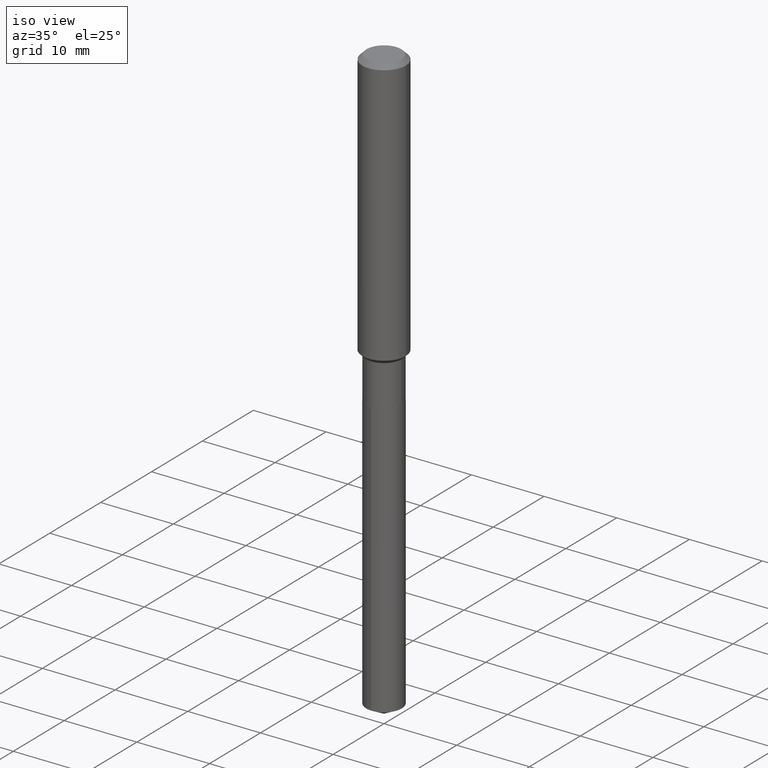
[diagram: clean part render]
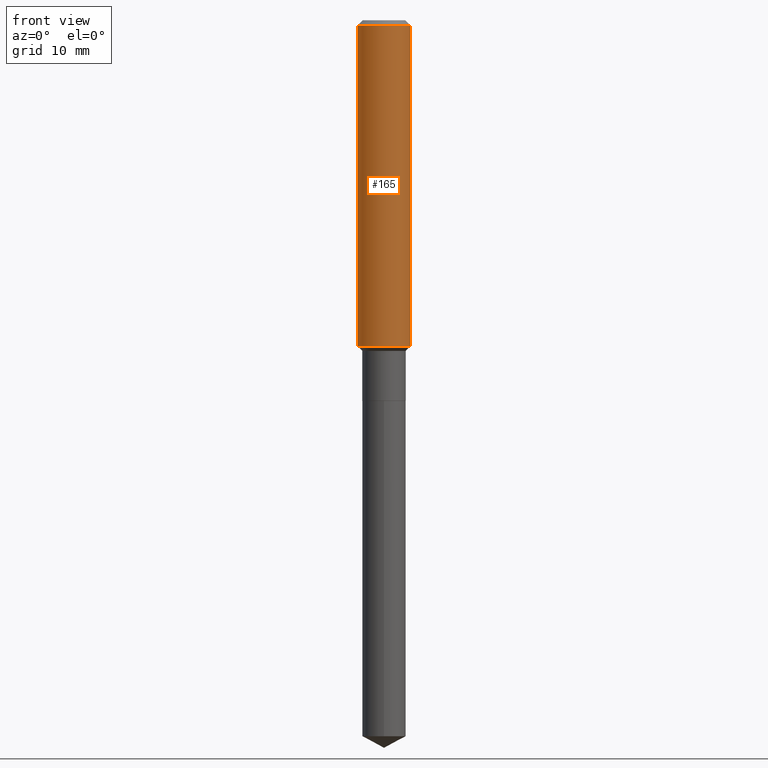
[diagram: tour spotlight — one face highlighted and labeled with its STEP entity id]
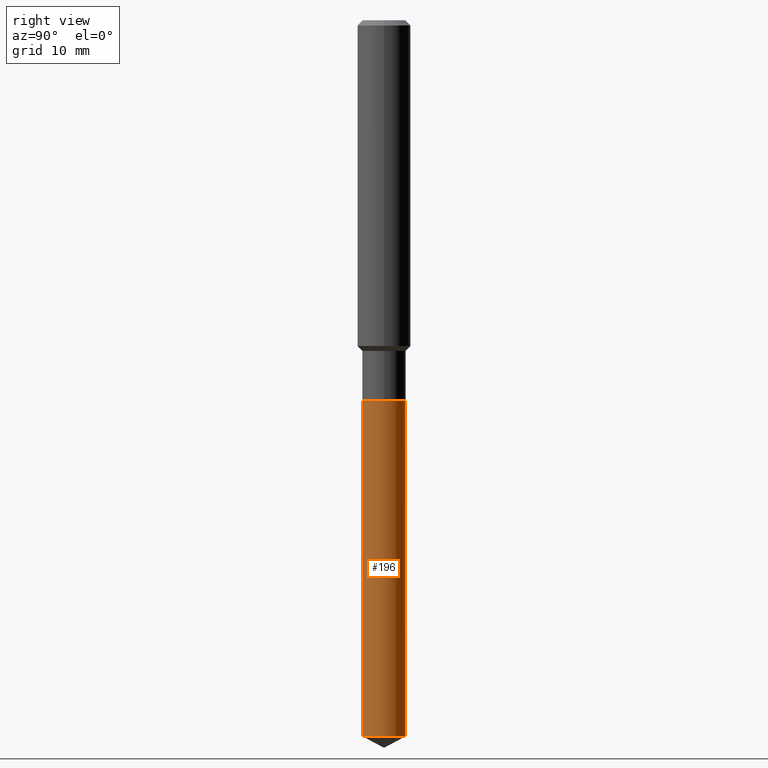
[diagram: tour spotlight — one face highlighted and labeled with its STEP entity id]
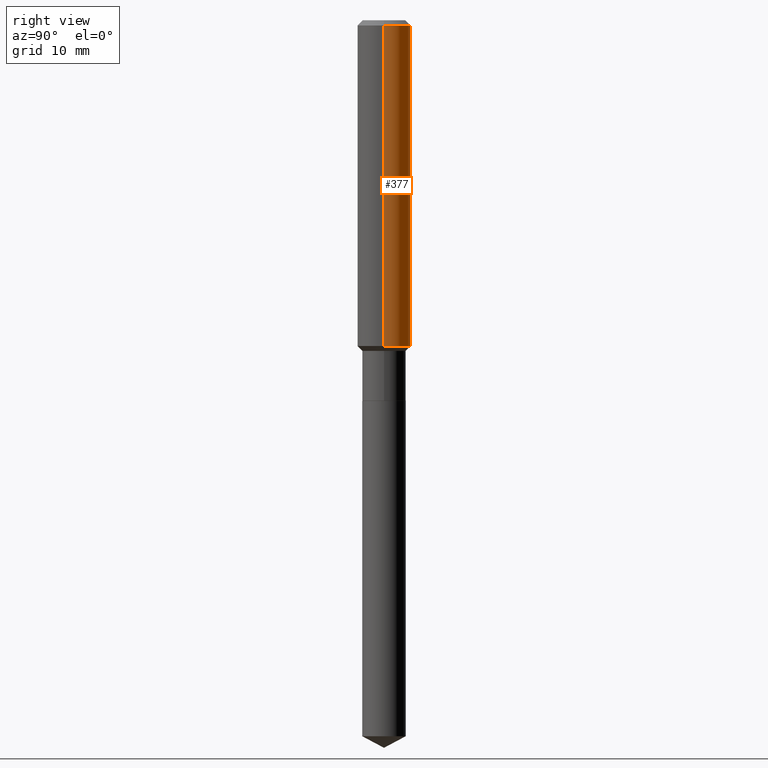
[diagram: tour spotlight — one face highlighted and labeled with its STEP entity id]
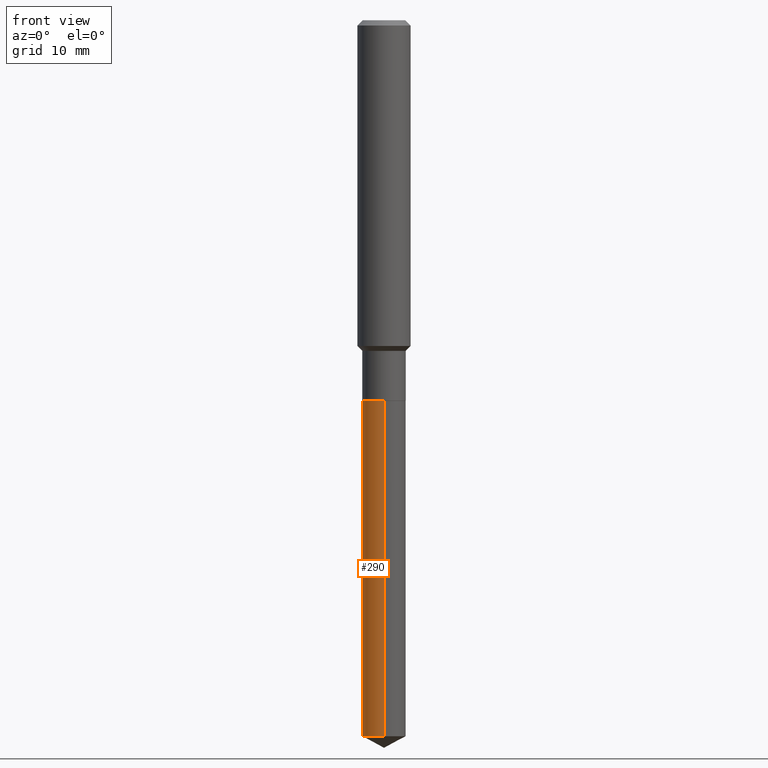
[diagram: tour spotlight — one face highlighted and labeled with its STEP entity id]
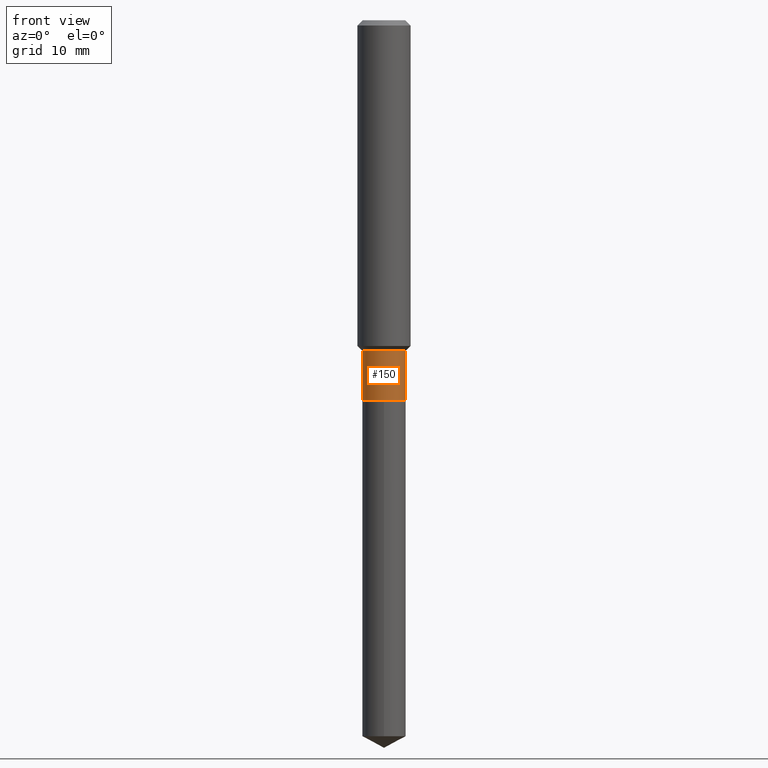
[diagram: tour spotlight — one face highlighted and labeled with its STEP entity id]
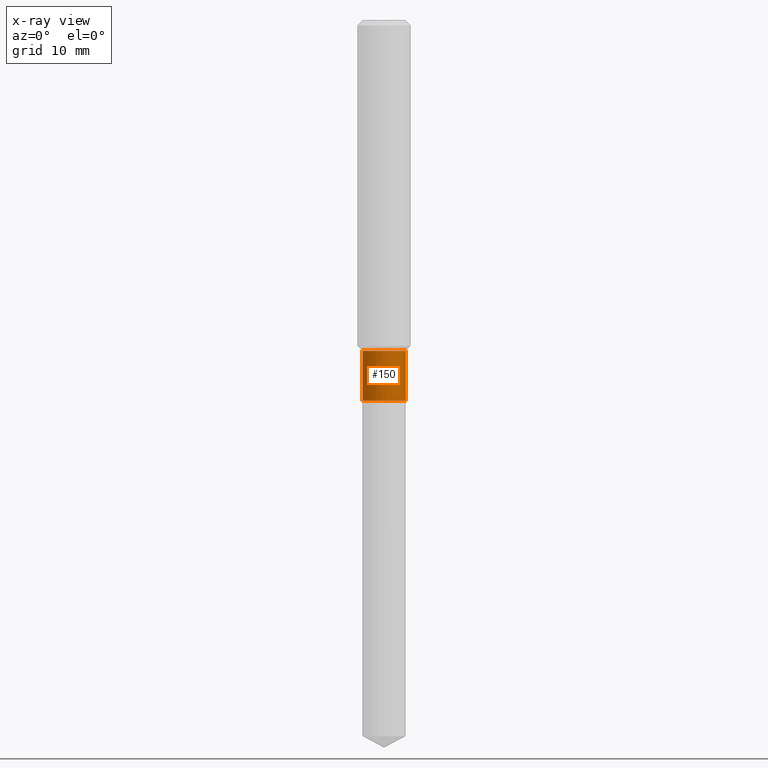
[diagram: x-ray of the same camera — body ghosted, this tour face saturated]
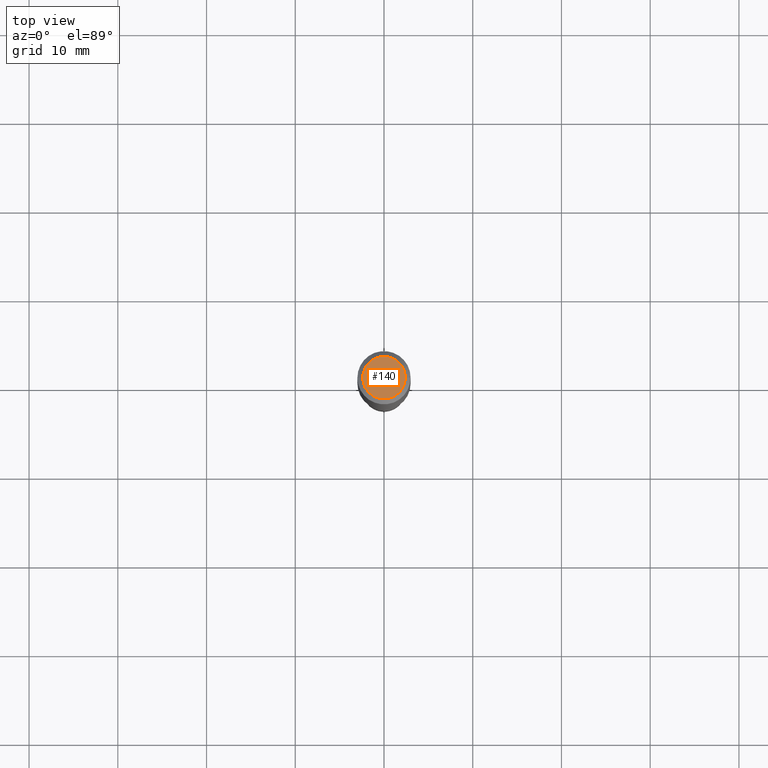
[diagram: tour spotlight — one face highlighted and labeled with its STEP entity id]
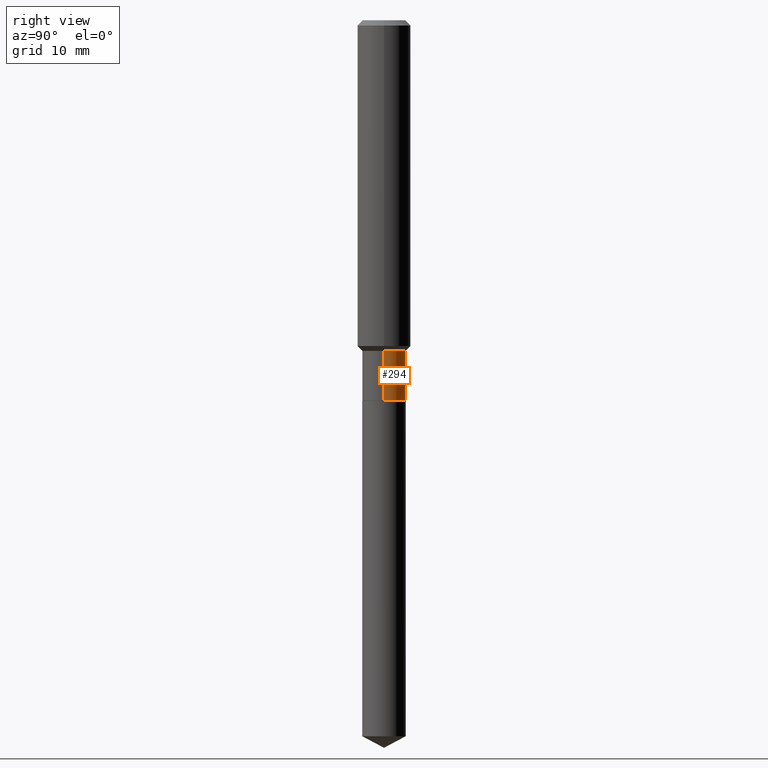
[diagram: tour spotlight — one face highlighted and labeled with its STEP entity id]
A machine part: a face-by-face anatomy tour. The part has 17 B-rep faces; the first image is the clean iso view, then the 7 largest visible faces are spotlighted one at a time (largest first), each with its STEP entity span.

Face 1 — front view, entity #165. In plain terms, the highlighted cylindrical surface (edge-blend (fillet) strip) has radius 2.9997 mm, axis along (-0, 0, 1).
Definition (entity closure, byte-faithful):
#7 = AXIS2_PLACEMENT_3D ( 'NONE', #222, #443, #112 ) ;
#15 = VERTEX_POINT ( 'NONE', #156 ) ;
#18 = ORIENTED_EDGE ( 'NONE', *, *, #413, .T. ) ;
#33 = VERTEX_POINT ( 'NONE', #256 ) ;
#42 = EDGE_CURVE ( 'NONE', #189, #33, #209, .T. ) ;
#49 = CIRCLE ( 'NONE', #67, 0.1181000000000001632 ) ;
#65 = CARTESIAN_POINT ( 'NONE',  ( 0.1181000000000000799, -8.246878922347486570E-16, 5.758764772215004644E-30 ) ) ;
#67 = AXIS2_PLACEMENT_3D ( 'NONE', #481, #282, #320 ) ;
#79 = CARTESIAN_POINT ( 'NONE',  ( 0.1181000000000001632, -5.871449593465574484E-15, -1.445450000000000124 ) ) ;
#99 = CARTESIAN_POINT ( 'NONE',  ( -0.1181000000000000799, 8.391509709326788873E-16, -5.809262341591047988E-30 ) ) ;
#109 = DIRECTION ( 'NONE',  ( 1.000000000000000000, -6.982962677686266711E-15, 4.876176775795936353E-29 ) ) ;
#112 = DIRECTION ( 'NONE',  ( 1.000000000000000000, -6.982962677686266711E-15, 0.000000000000000000 ) ) ;
#124 = ORIENTED_EDGE ( 'NONE', *, *, #200, .F. ) ;
#138 = DIRECTION ( 'NONE',  ( -2.445468806185136877E-29, 3.491481338843145188E-15, 1.000000000000000000 ) ) ;
#151 = CYLINDRICAL_SURFACE ( 'NONE', #254, 0.1181000000000000799 ) ;
#156 = CARTESIAN_POINT ( 'NONE',  ( -0.1180999999999999966, -1.725464274294470473E-15, -0.02362000000000014088 ) ) ;
#165 = ADVANCED_FACE ( 'NONE', ( #193 ), #151, .T. ) ;
#179 = LINE ( 'NONE', #99, #317 ) ;
#189 = VERTEX_POINT ( 'NONE', #79 ) ;
#193 = FACE_OUTER_BOUND ( 'NONE', #231, .T. ) ;
#200 = EDGE_CURVE ( 'NONE', #15, #33, #428, .T. ) ;
#209 = LINE ( 'NONE', #65, #444 ) ;
#222 = CARTESIAN_POINT ( 'NONE',  ( 5.776197320209327532E-31, -8.246878922347559293E-17, -0.02362000000000014088 ) ) ;
#231 = EDGE_LOOP ( 'NONE', ( #275, #18, #417, #124 ) ) ;
#249 = CARTESIAN_POINT ( 'NONE',  ( -0.1181000000000001632, -4.207610730298144868E-15, -1.445450000000000124 ) ) ;
#254 = AXIS2_PLACEMENT_3D ( 'NONE', #487, #298, #109 ) ;
#256 = CARTESIAN_POINT ( 'NONE',  ( 0.1180999999999999966, -9.071566814582237199E-16, -0.02362000000000014088 ) ) ;
#275 = ORIENTED_EDGE ( 'NONE', *, *, #454, .F. ) ;
#282 = DIRECTION ( 'NONE',  ( -2.445468806185136597E-29, 3.491481338843145583E-15, 1.000000000000000000 ) ) ;
#298 = DIRECTION ( 'NONE',  ( -2.445468806185136597E-29, 3.491481338843145583E-15, 1.000000000000000000 ) ) ;
#317 = VECTOR ( 'NONE', #476, 39.37007874015748143 ) ;
#320 = DIRECTION ( 'NONE',  ( 1.000000000000000000, -6.982962677686263555E-15, 0.000000000000000000 ) ) ;
#399 = VERTEX_POINT ( 'NONE', #249 ) ;
#413 = EDGE_CURVE ( 'NONE', #399, #189, #49, .T. ) ;
#417 = ORIENTED_EDGE ( 'NONE', *, *, #42, .T. ) ;
#428 = CIRCLE ( 'NONE', #7, 0.1180999999999999966 ) ;
#443 = DIRECTION ( 'NONE',  ( -2.445468806185136597E-29, 3.491481338843145583E-15, 1.000000000000000000 ) ) ;
#444 = VECTOR ( 'NONE', #138, 39.37007874015748143 ) ;
#454 = EDGE_CURVE ( 'NONE', #399, #15, #179, .T. ) ;
#476 = DIRECTION ( 'NONE',  ( -2.445468806185136877E-29, 3.491481338843145188E-15, 1.000000000000000000 ) ) ;
#481 = CARTESIAN_POINT ( 'NONE',  ( 3.534802885900305926E-29, -5.046761701230824643E-15, -1.445450000000000124 ) ) ;
#487 = CARTESIAN_POINT ( 'NONE',  ( 0.000000000000000000, 0.000000000000000000, 0.000000000000000000 ) ) ;

Face 2 — right view, entity #196. In plain terms, the highlighted cylindrical surface (edge-blend (fillet) strip) has radius 2.4498 mm, axis along (-0, 0, 1).
Definition (entity closure, byte-faithful):
#13 = ORIENTED_EDGE ( 'NONE', *, *, #407, .T. ) ;
#43 = CARTESIAN_POINT ( 'NONE',  ( 4.130152266766077627E-29, -5.896762833172189046E-15, -1.688900000000000068 ) ) ;
#44 = ORIENTED_EDGE ( 'NONE', *, *, #286, .F. ) ;
#70 = LINE ( 'NONE', #427, #410 ) ;
#82 = AXIS2_PLACEMENT_3D ( 'NONE', #261, #489, #263 ) ;
#105 = AXIS2_PLACEMENT_3D ( 'NONE', #208, #396, #284 ) ;
#114 = ORIENTED_EDGE ( 'NONE', *, *, #322, .F. ) ;
#121 = VERTEX_POINT ( 'NONE', #429 ) ;
#122 = AXIS2_PLACEMENT_3D ( 'NONE', #43, #449, #409 ) ;
#129 = CARTESIAN_POINT ( 'NONE',  ( -6.735067502627990177E-16, -0.09645000000000587825, -1.688899999999999846 ) ) ;
#169 = CIRCLE ( 'NONE', #82, 0.09644999999999999407 ) ;
#172 = DIRECTION ( 'NONE',  ( -2.445437499800212978E-29, 3.491526171368205538E-15, 1.000000000000000000 ) ) ;
#184 = EDGE_LOOP ( 'NONE', ( #337, #13, #114, #44 ) ) ;
#194 = LINE ( 'NONE', #129, #269 ) ;
#196 = ADVANCED_FACE ( 'NONE', ( #228 ), #258, .T. ) ;
#202 = EDGE_CURVE ( 'NONE', #266, #423, #169, .T. ) ;
#208 = CARTESIAN_POINT ( 'NONE',  ( 4.130152266766077627E-29, -5.896762833172189046E-15, -1.688900000000000068 ) ) ;
#228 = FACE_OUTER_BOUND ( 'NONE', #184, .T. ) ;
#258 = CYLINDRICAL_SURFACE ( 'NONE', #122, 0.09644999999999999407 ) ;
#261 = CARTESIAN_POINT ( 'NONE',  ( 7.769248466390578459E-29, -1.109256097651201163E-14, -3.177016625316250398 ) ) ;
#263 = DIRECTION ( 'NONE',  ( -6.982962677686265133E-15, -1.000000000000000000, 5.664796254358244252E-15 ) ) ;
#266 = VERTEX_POINT ( 'NONE', #346 ) ;
#269 = VECTOR ( 'NONE', #280, 39.37007874015748143 ) ;
#280 = DIRECTION ( 'NONE',  ( -2.445437499800212978E-29, 3.491526171368205538E-15, 1.000000000000000000 ) ) ;
#284 = DIRECTION ( 'NONE',  ( -6.982962677686265133E-15, -1.000000000000000000, 2.832398127179122126E-15 ) ) ;
#286 = EDGE_CURVE ( 'NONE', #266, #344, #194, .T. ) ;
#287 = CARTESIAN_POINT ( 'NONE',  ( -6.735067502627990177E-16, -0.09645000000000587825, -1.688899999999999846 ) ) ;
#322 = EDGE_CURVE ( 'NONE', #344, #121, #352, .T. ) ;
#337 = ORIENTED_EDGE ( 'NONE', *, *, #202, .T. ) ;
#344 = VERTEX_POINT ( 'NONE', #287 ) ;
#346 = CARTESIAN_POINT ( 'NONE',  ( -6.735067502627625329E-16, -0.09645000000001105467, -3.177016625316249954 ) ) ;
#352 = CIRCLE ( 'NONE', #105, 0.09644999999999999407 ) ;
#392 = CARTESIAN_POINT ( 'NONE',  ( 6.853184686406937969E-16, 0.09644999999998887796, -3.177016625316251286 ) ) ;
#396 = DIRECTION ( 'NONE',  ( -2.445437499800212978E-29, 3.491526171368205144E-15, 1.000000000000000000 ) ) ;
#407 = EDGE_CURVE ( 'NONE', #423, #121, #70, .T. ) ;
#409 = DIRECTION ( 'NONE',  ( -6.982962677686265133E-15, -1.000000000000000000, 2.832398127179122126E-15 ) ) ;
#410 = VECTOR ( 'NONE', #172, 39.37007874015748143 ) ;
#423 = VERTEX_POINT ( 'NONE', #392 ) ;
#427 = CARTESIAN_POINT ( 'NONE',  ( 6.853184686406577065E-16, 0.09644999999999409601, -1.688900000000000290 ) ) ;
#429 = CARTESIAN_POINT ( 'NONE',  ( 6.853184686406942899E-16, 0.09644999999999409601, -1.688900000000000290 ) ) ;
#449 = DIRECTION ( 'NONE',  ( -2.445437499800212978E-29, 3.491526171368205144E-15, 1.000000000000000000 ) ) ;
#489 = DIRECTION ( 'NONE',  ( -2.445437499800212978E-29, 3.491526171368205144E-15, 1.000000000000000000 ) ) ;

Face 3 — right view, entity #377. In plain terms, the highlighted cylindrical surface (edge-blend (fillet) strip) has radius 2.9997 mm, axis along (-0, 0, 1).
Definition (entity closure, byte-faithful):
#2 = ORIENTED_EDGE ( 'NONE', *, *, #330, .F. ) ;
#15 = VERTEX_POINT ( 'NONE', #156 ) ;
#24 = DIRECTION ( 'NONE',  ( 1.000000000000000000, -6.982962677686263555E-15, 0.000000000000000000 ) ) ;
#33 = VERTEX_POINT ( 'NONE', #256 ) ;
#42 = EDGE_CURVE ( 'NONE', #189, #33, #209, .T. ) ;
#61 = CARTESIAN_POINT ( 'NONE',  ( 3.534802885900305926E-29, -5.046761701230824643E-15, -1.445450000000000124 ) ) ;
#65 = CARTESIAN_POINT ( 'NONE',  ( 0.1181000000000000799, -8.246878922347486570E-16, 5.758764772215004644E-30 ) ) ;
#79 = CARTESIAN_POINT ( 'NONE',  ( 0.1181000000000001632, -5.871449593465574484E-15, -1.445450000000000124 ) ) ;
#99 = CARTESIAN_POINT ( 'NONE',  ( -0.1181000000000000799, 8.391509709326788873E-16, -5.809262341591047988E-30 ) ) ;
#138 = DIRECTION ( 'NONE',  ( -2.445468806185136877E-29, 3.491481338843145188E-15, 1.000000000000000000 ) ) ;
#156 = CARTESIAN_POINT ( 'NONE',  ( -0.1180999999999999966, -1.725464274294470473E-15, -0.02362000000000014088 ) ) ;
#171 = ORIENTED_EDGE ( 'NONE', *, *, #448, .T. ) ;
#174 = DIRECTION ( 'NONE',  ( -2.445468806185136597E-29, 3.491481338843145583E-15, 1.000000000000000000 ) ) ;
#179 = LINE ( 'NONE', #99, #317 ) ;
#187 = CIRCLE ( 'NONE', #439, 0.1181000000000001632 ) ;
#188 = EDGE_LOOP ( 'NONE', ( #171, #453, #2, #301 ) ) ;
#189 = VERTEX_POINT ( 'NONE', #79 ) ;
#191 = AXIS2_PLACEMENT_3D ( 'NONE', #255, #479, #363 ) ;
#209 = LINE ( 'NONE', #65, #444 ) ;
#210 = CARTESIAN_POINT ( 'NONE',  ( 0.000000000000000000, 0.000000000000000000, 0.000000000000000000 ) ) ;
#249 = CARTESIAN_POINT ( 'NONE',  ( -0.1181000000000001632, -4.207610730298144868E-15, -1.445450000000000124 ) ) ;
#255 = CARTESIAN_POINT ( 'NONE',  ( 5.776197320209327532E-31, -8.246878922347559293E-17, -0.02362000000000014088 ) ) ;
#256 = CARTESIAN_POINT ( 'NONE',  ( 0.1180999999999999966, -9.071566814582237199E-16, -0.02362000000000014088 ) ) ;
#301 = ORIENTED_EDGE ( 'NONE', *, *, #42, .F. ) ;
#317 = VECTOR ( 'NONE', #476, 39.37007874015748143 ) ;
#327 = AXIS2_PLACEMENT_3D ( 'NONE', #210, #174, #472 ) ;
#328 = FACE_OUTER_BOUND ( 'NONE', #188, .T. ) ;
#330 = EDGE_CURVE ( 'NONE', #33, #15, #475, .T. ) ;
#353 = CYLINDRICAL_SURFACE ( 'NONE', #327, 0.1181000000000000799 ) ;
#359 = DIRECTION ( 'NONE',  ( -2.445468806185136597E-29, 3.491481338843145583E-15, 1.000000000000000000 ) ) ;
#363 = DIRECTION ( 'NONE',  ( 1.000000000000000000, -6.982962677686266711E-15, 0.000000000000000000 ) ) ;
#377 = ADVANCED_FACE ( 'NONE', ( #328 ), #353, .T. ) ;
#399 = VERTEX_POINT ( 'NONE', #249 ) ;
#439 = AXIS2_PLACEMENT_3D ( 'NONE', #61, #359, #24 ) ;
#444 = VECTOR ( 'NONE', #138, 39.37007874015748143 ) ;
#448 = EDGE_CURVE ( 'NONE', #189, #399, #187, .T. ) ;
#453 = ORIENTED_EDGE ( 'NONE', *, *, #454, .T. ) ;
#454 = EDGE_CURVE ( 'NONE', #399, #15, #179, .T. ) ;
#472 = DIRECTION ( 'NONE',  ( 1.000000000000000000, -6.982962677686266711E-15, 4.876176775795936353E-29 ) ) ;
#475 = CIRCLE ( 'NONE', #191, 0.1180999999999999966 ) ;
#476 = DIRECTION ( 'NONE',  ( -2.445468806185136877E-29, 3.491481338843145188E-15, 1.000000000000000000 ) ) ;
#479 = DIRECTION ( 'NONE',  ( -2.445468806185136597E-29, 3.491481338843145583E-15, 1.000000000000000000 ) ) ;

Face 4 — front view, entity #290. In plain terms, the highlighted cylindrical surface (edge-blend (fillet) strip) has radius 2.4498 mm, axis along (-0, 0, 1).
Definition (entity closure, byte-faithful):
#30 = CARTESIAN_POINT ( 'NONE',  ( 4.130152266766077627E-29, -5.896762833172189046E-15, -1.688900000000000068 ) ) ;
#40 = AXIS2_PLACEMENT_3D ( 'NONE', #30, #244, #438 ) ;
#70 = LINE ( 'NONE', #427, #410 ) ;
#88 = DIRECTION ( 'NONE',  ( -6.982962677686265133E-15, -1.000000000000000000, 2.832398127179122126E-15 ) ) ;
#94 = CIRCLE ( 'NONE', #421, 0.09644999999999999407 ) ;
#121 = VERTEX_POINT ( 'NONE', #429 ) ;
#129 = CARTESIAN_POINT ( 'NONE',  ( -6.735067502627990177E-16, -0.09645000000000587825, -1.688899999999999846 ) ) ;
#152 = CIRCLE ( 'NONE', #40, 0.09644999999999999407 ) ;
#172 = DIRECTION ( 'NONE',  ( -2.445437499800212978E-29, 3.491526171368205538E-15, 1.000000000000000000 ) ) ;
#177 = ORIENTED_EDGE ( 'NONE', *, *, #404, .F. ) ;
#194 = LINE ( 'NONE', #129, #269 ) ;
#214 = DIRECTION ( 'NONE',  ( -6.982962677686265133E-15, -1.000000000000000000, 5.664796254358244252E-15 ) ) ;
#244 = DIRECTION ( 'NONE',  ( -2.445437499800212978E-29, 3.491526171368205144E-15, 1.000000000000000000 ) ) ;
#266 = VERTEX_POINT ( 'NONE', #346 ) ;
#269 = VECTOR ( 'NONE', #280, 39.37007874015748143 ) ;
#272 = DIRECTION ( 'NONE',  ( -2.445437499800212978E-29, 3.491526171368205144E-15, 1.000000000000000000 ) ) ;
#274 = CARTESIAN_POINT ( 'NONE',  ( 4.130152266766077627E-29, -5.896762833172189046E-15, -1.688900000000000068 ) ) ;
#280 = DIRECTION ( 'NONE',  ( -2.445437499800212978E-29, 3.491526171368205538E-15, 1.000000000000000000 ) ) ;
#281 = ORIENTED_EDGE ( 'NONE', *, *, #407, .F. ) ;
#286 = EDGE_CURVE ( 'NONE', #266, #344, #194, .T. ) ;
#287 = CARTESIAN_POINT ( 'NONE',  ( -6.735067502627990177E-16, -0.09645000000000587825, -1.688899999999999846 ) ) ;
#290 = ADVANCED_FACE ( 'NONE', ( #455 ), #458, .T. ) ;
#292 = ORIENTED_EDGE ( 'NONE', *, *, #286, .T. ) ;
#344 = VERTEX_POINT ( 'NONE', #287 ) ;
#346 = CARTESIAN_POINT ( 'NONE',  ( -6.735067502627625329E-16, -0.09645000000001105467, -3.177016625316249954 ) ) ;
#362 = EDGE_LOOP ( 'NONE', ( #281, #406, #292, #177 ) ) ;
#371 = EDGE_CURVE ( 'NONE', #423, #266, #94, .T. ) ;
#389 = DIRECTION ( 'NONE',  ( -2.445437499800212978E-29, 3.491526171368205144E-15, 1.000000000000000000 ) ) ;
#392 = CARTESIAN_POINT ( 'NONE',  ( 6.853184686406937969E-16, 0.09644999999998887796, -3.177016625316251286 ) ) ;
#404 = EDGE_CURVE ( 'NONE', #121, #344, #152, .T. ) ;
#406 = ORIENTED_EDGE ( 'NONE', *, *, #371, .T. ) ;
#407 = EDGE_CURVE ( 'NONE', #423, #121, #70, .T. ) ;
#410 = VECTOR ( 'NONE', #172, 39.37007874015748143 ) ;
#421 = AXIS2_PLACEMENT_3D ( 'NONE', #435, #389, #214 ) ;
#423 = VERTEX_POINT ( 'NONE', #392 ) ;
#427 = CARTESIAN_POINT ( 'NONE',  ( 6.853184686406577065E-16, 0.09644999999999409601, -1.688900000000000290 ) ) ;
#429 = CARTESIAN_POINT ( 'NONE',  ( 6.853184686406942899E-16, 0.09644999999999409601, -1.688900000000000290 ) ) ;
#435 = CARTESIAN_POINT ( 'NONE',  ( 7.769248466390578459E-29, -1.109256097651201163E-14, -3.177016625316250398 ) ) ;
#438 = DIRECTION ( 'NONE',  ( -6.982962677686265133E-15, -1.000000000000000000, 2.832398127179122126E-15 ) ) ;
#455 = FACE_OUTER_BOUND ( 'NONE', #362, .T. ) ;
#458 = CYLINDRICAL_SURFACE ( 'NONE', #467, 0.09644999999999999407 ) ;
#467 = AXIS2_PLACEMENT_3D ( 'NONE', #274, #272, #88 ) ;

Face 5 — front view, entity #150. An x-ray twin of the same camera follows (body ghosted, this face saturated) — the face is partly hidden behind the body. In plain terms, the highlighted cylindrical surface (edge-blend (fillet) strip) has radius 2.4498 mm, axis along (-0, 0, 1).
Definition (entity closure, byte-faithful):
#6 = ORIENTED_EDGE ( 'NONE', *, *, #148, .T. ) ;
#12 = DIRECTION ( 'NONE',  ( -2.445468806185136877E-29, 3.491481338843145188E-15, 1.000000000000000000 ) ) ;
#19 = CARTESIAN_POINT ( 'NONE',  ( 0.09644999999999999407, -6.568523842765608074E-15, -1.688400000000000123 ) ) ;
#23 = ORIENTED_EDGE ( 'NONE', *, *, #218, .T. ) ;
#77 = CARTESIAN_POINT ( 'NONE',  ( 0.09644999999999995244, -5.795859022479619040E-15, -1.467100000000000071 ) ) ;
#100 = LINE ( 'NONE', #393, #232 ) ;
#104 = CIRCLE ( 'NONE', #373, 0.09644999999999999407 ) ;
#116 = DIRECTION ( 'NONE',  ( -2.445468806185136597E-29, 3.491481338843145583E-15, 1.000000000000000000 ) ) ;
#131 = LINE ( 'NONE', #349, #379 ) ;
#144 = CYLINDRICAL_SURFACE ( 'NONE', #464, 0.09644999999999996632 ) ;
#148 = EDGE_CURVE ( 'NONE', #383, #204, #100, .T. ) ;
#150 = ADVANCED_FACE ( 'NONE', ( #397 ), #144, .T. ) ;
#203 = DIRECTION ( 'NONE',  ( -2.445468806185136597E-29, 3.491481338843145583E-15, 1.000000000000000000 ) ) ;
#204 = VERTEX_POINT ( 'NONE', #77 ) ;
#218 = EDGE_CURVE ( 'NONE', #347, #383, #104, .T. ) ;
#223 = EDGE_CURVE ( 'NONE', #347, #358, #131, .T. ) ;
#224 = CARTESIAN_POINT ( 'NONE',  ( 4.128929532362984826E-29, -5.895017092502767543E-15, -1.688400000000000123 ) ) ;
#232 = VECTOR ( 'NONE', #250, 39.37007874015748143 ) ;
#238 = DIRECTION ( 'NONE',  ( 1.000000000000000000, -6.982962677686264344E-15, 0.000000000000000000 ) ) ;
#240 = CARTESIAN_POINT ( 'NONE',  ( -0.09644999999999995244, -4.823366213719156537E-15, -1.467100000000000071 ) ) ;
#241 = ORIENTED_EDGE ( 'NONE', *, *, #223, .F. ) ;
#250 = DIRECTION ( 'NONE',  ( -2.445468806185136877E-29, 3.491481338843145188E-15, 1.000000000000000000 ) ) ;
#279 = CIRCLE ( 'NONE', #400, 0.09644999999999995244 ) ;
#306 = DIRECTION ( 'NONE',  ( 1.000000000000000000, -6.982962677686267499E-15, 4.876176775795936353E-29 ) ) ;
#316 = EDGE_LOOP ( 'NONE', ( #241, #23, #6, #378 ) ) ;
#331 = CARTESIAN_POINT ( 'NONE',  ( -0.09644999999999999407, -4.823366213719156537E-15, -1.688400000000000123 ) ) ;
#332 = CARTESIAN_POINT ( 'NONE',  ( 0.000000000000000000, 0.000000000000000000, 0.000000000000000000 ) ) ;
#334 = DIRECTION ( 'NONE',  ( 1.000000000000000000, -6.982962677686267499E-15, 0.000000000000000000 ) ) ;
#347 = VERTEX_POINT ( 'NONE', #331 ) ;
#349 = CARTESIAN_POINT ( 'NONE',  ( -0.09644999999999996632, 6.853184686406163899E-16, -4.744312894550855181E-30 ) ) ;
#354 = EDGE_CURVE ( 'NONE', #358, #204, #279, .T. ) ;
#358 = VERTEX_POINT ( 'NONE', #240 ) ;
#360 = DIRECTION ( 'NONE',  ( -2.445468806185136597E-29, 3.491481338843145583E-15, 1.000000000000000000 ) ) ;
#373 = AXIS2_PLACEMENT_3D ( 'NONE', #224, #203, #238 ) ;
#378 = ORIENTED_EDGE ( 'NONE', *, *, #354, .F. ) ;
#379 = VECTOR ( 'NONE', #12, 39.37007874015748143 ) ;
#383 = VERTEX_POINT ( 'NONE', #19 ) ;
#385 = CARTESIAN_POINT ( 'NONE',  ( 3.587747285554214477E-29, -5.122352272216779298E-15, -1.467100000000000071 ) ) ;
#393 = CARTESIAN_POINT ( 'NONE',  ( 0.09644999999999996632, -6.735067502628402357E-16, 4.703072500255178901E-30 ) ) ;
#397 = FACE_OUTER_BOUND ( 'NONE', #316, .T. ) ;
#400 = AXIS2_PLACEMENT_3D ( 'NONE', #385, #360, #334 ) ;
#464 = AXIS2_PLACEMENT_3D ( 'NONE', #332, #116, #306 ) ;

Face 6 — top view, entity #140. In plain terms, the highlighted planar face has unit normal (0, -0, -1).
Definition (entity closure, byte-faithful):
#9 = CARTESIAN_POINT ( 'NONE',  ( 4.716267017698007905E-46, -6.733579360998555036E-32, -1.928573779297252010E-17 ) ) ;
#25 = AXIS2_PLACEMENT_3D ( 'NONE', #9, #276, #45 ) ;
#31 = PLANE ( 'NONE',  #366 ) ;
#45 = DIRECTION ( 'NONE',  ( 1.000000000000000000, -6.982962677686267499E-15, 4.875432709231658792E-29 ) ) ;
#59 = FACE_OUTER_BOUND ( 'NONE', #278, .T. ) ;
#83 = CARTESIAN_POINT ( 'NONE',  ( -0.09447999999999998066, 7.009847083995354710E-16, -1.928573779297727792E-17 ) ) ;
#113 = CIRCLE ( 'NONE', #25, 0.09447999999999998066 ) ;
#140 = ADVANCED_FACE ( 'NONE', ( #59 ), #31, .F. ) ;
#183 = CARTESIAN_POINT ( 'NONE',  ( 2.358133508849003952E-46, -3.366789680499277518E-32, -9.642868896486260050E-18 ) ) ;
#201 = ORIENTED_EDGE ( 'NONE', *, *, #264, .T. ) ;
#233 = VERTEX_POINT ( 'NONE', #83 ) ;
#247 = EDGE_CURVE ( 'NONE', #233, #319, #445, .T. ) ;
#248 = DIRECTION ( 'NONE',  ( -1.000000000000000000, 6.982962677686265922E-15, -4.876176775795935793E-29 ) ) ;
#264 = EDGE_CURVE ( 'NONE', #319, #233, #113, .T. ) ;
#276 = DIRECTION ( 'NONE',  ( -2.445468806185136597E-29, 3.491481338843145583E-15, 1.000000000000000000 ) ) ;
#278 = EDGE_LOOP ( 'NONE', ( #351, #201 ) ) ;
#308 = CARTESIAN_POINT ( 'NONE',  ( 4.716267017698007905E-46, -6.733579360998555036E-32, -1.928573779297252010E-17 ) ) ;
#319 = VERTEX_POINT ( 'NONE', #425 ) ;
#351 = ORIENTED_EDGE ( 'NONE', *, *, #247, .T. ) ;
#366 = AXIS2_PLACEMENT_3D ( 'NONE', #183, #432, #248 ) ;
#375 = DIRECTION ( 'NONE',  ( 1.000000000000000000, -6.982962677686267499E-15, 4.875432709231658792E-29 ) ) ;
#420 = DIRECTION ( 'NONE',  ( -2.445468806185136597E-29, 3.491481338843145583E-15, 1.000000000000000000 ) ) ;
#425 = CARTESIAN_POINT ( 'NONE',  ( 0.09447999999999998066, -7.704367267948738690E-16, -1.928573779296752193E-17 ) ) ;
#432 = DIRECTION ( 'NONE',  ( 2.438088387897960049E-29, -3.491481338843145188E-15, -1.000000000000000000 ) ) ;
#445 = CIRCLE ( 'NONE', #473, 0.09447999999999998066 ) ;
#473 = AXIS2_PLACEMENT_3D ( 'NONE', #308, #420, #375 ) ;

Face 7 — right view, entity #294. In plain terms, the highlighted cylindrical surface (edge-blend (fillet) strip) has radius 2.4498 mm, axis along (-0, 0, 1).
Definition (entity closure, byte-faithful):
#12 = DIRECTION ( 'NONE',  ( -2.445468806185136877E-29, 3.491481338843145188E-15, 1.000000000000000000 ) ) ;
#17 = DIRECTION ( 'NONE',  ( -2.445468806185136597E-29, 3.491481338843145583E-15, 1.000000000000000000 ) ) ;
#19 = CARTESIAN_POINT ( 'NONE',  ( 0.09644999999999999407, -6.568523842765608074E-15, -1.688400000000000123 ) ) ;
#56 = ORIENTED_EDGE ( 'NONE', *, *, #148, .F. ) ;
#64 = DIRECTION ( 'NONE',  ( 1.000000000000000000, -6.982962677686267499E-15, 4.876176775795936353E-29 ) ) ;
#77 = CARTESIAN_POINT ( 'NONE',  ( 0.09644999999999995244, -5.795859022479619040E-15, -1.467100000000000071 ) ) ;
#80 = AXIS2_PLACEMENT_3D ( 'NONE', #106, #441, #364 ) ;
#81 = EDGE_LOOP ( 'NONE', ( #419, #345, #93, #56 ) ) ;
#91 = EDGE_CURVE ( 'NONE', #383, #347, #295, .T. ) ;
#93 = ORIENTED_EDGE ( 'NONE', *, *, #243, .F. ) ;
#100 = LINE ( 'NONE', #393, #232 ) ;
#106 = CARTESIAN_POINT ( 'NONE',  ( 4.128929532362984826E-29, -5.895017092502767543E-15, -1.688400000000000123 ) ) ;
#126 = CARTESIAN_POINT ( 'NONE',  ( 0.000000000000000000, 0.000000000000000000, 0.000000000000000000 ) ) ;
#128 = AXIS2_PLACEMENT_3D ( 'NONE', #126, #376, #64 ) ;
#131 = LINE ( 'NONE', #349, #379 ) ;
#148 = EDGE_CURVE ( 'NONE', #383, #204, #100, .T. ) ;
#166 = CARTESIAN_POINT ( 'NONE',  ( 3.587747285554214477E-29, -5.122352272216779298E-15, -1.467100000000000071 ) ) ;
#197 = CIRCLE ( 'NONE', #227, 0.09644999999999995244 ) ;
#204 = VERTEX_POINT ( 'NONE', #77 ) ;
#223 = EDGE_CURVE ( 'NONE', #347, #358, #131, .T. ) ;
#227 = AXIS2_PLACEMENT_3D ( 'NONE', #166, #17, #342 ) ;
#230 = CYLINDRICAL_SURFACE ( 'NONE', #128, 0.09644999999999996632 ) ;
#232 = VECTOR ( 'NONE', #250, 39.37007874015748143 ) ;
#240 = CARTESIAN_POINT ( 'NONE',  ( -0.09644999999999995244, -4.823366213719156537E-15, -1.467100000000000071 ) ) ;
#243 = EDGE_CURVE ( 'NONE', #204, #358, #197, .T. ) ;
#250 = DIRECTION ( 'NONE',  ( -2.445468806185136877E-29, 3.491481338843145188E-15, 1.000000000000000000 ) ) ;
#294 = ADVANCED_FACE ( 'NONE', ( #416 ), #230, .T. ) ;
#295 = CIRCLE ( 'NONE', #80, 0.09644999999999999407 ) ;
#331 = CARTESIAN_POINT ( 'NONE',  ( -0.09644999999999999407, -4.823366213719156537E-15, -1.688400000000000123 ) ) ;
#342 = DIRECTION ( 'NONE',  ( 1.000000000000000000, -6.982962677686267499E-15, 0.000000000000000000 ) ) ;
#345 = ORIENTED_EDGE ( 'NONE', *, *, #223, .T. ) ;
#347 = VERTEX_POINT ( 'NONE', #331 ) ;
#349 = CARTESIAN_POINT ( 'NONE',  ( -0.09644999999999996632, 6.853184686406163899E-16, -4.744312894550855181E-30 ) ) ;
#358 = VERTEX_POINT ( 'NONE', #240 ) ;
#364 = DIRECTION ( 'NONE',  ( 1.000000000000000000, -6.982962677686264344E-15, 0.000000000000000000 ) ) ;
#376 = DIRECTION ( 'NONE',  ( -2.445468806185136597E-29, 3.491481338843145583E-15, 1.000000000000000000 ) ) ;
#379 = VECTOR ( 'NONE', #12, 39.37007874015748143 ) ;
#383 = VERTEX_POINT ( 'NONE', #19 ) ;
#393 = CARTESIAN_POINT ( 'NONE',  ( 0.09644999999999996632, -6.735067502628402357E-16, 4.703072500255178901E-30 ) ) ;
#416 = FACE_OUTER_BOUND ( 'NONE', #81, .T. ) ;
#419 = ORIENTED_EDGE ( 'NONE', *, *, #91, .T. ) ;
#441 = DIRECTION ( 'NONE',  ( -2.445468806185136597E-29, 3.491481338843145583E-15, 1.000000000000000000 ) ) ;